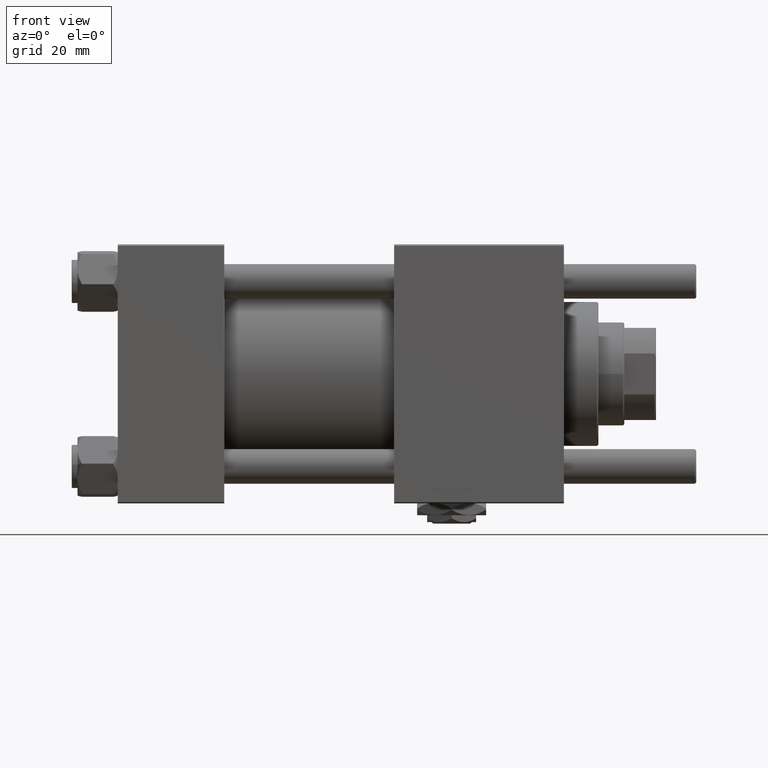
[diagram: clean part render]
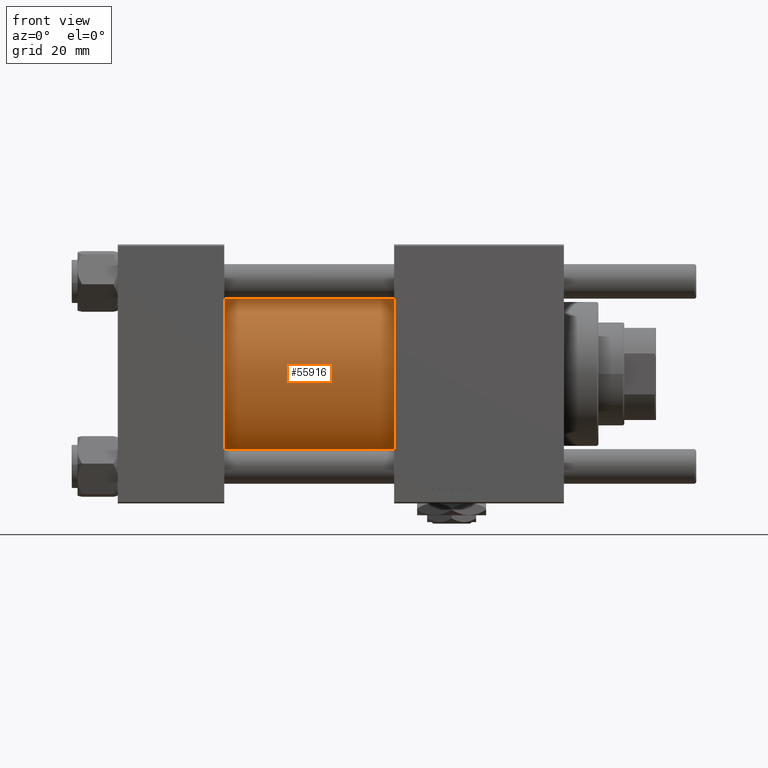
[diagram: same view with one face highlighted and labeled with its STEP entity id]
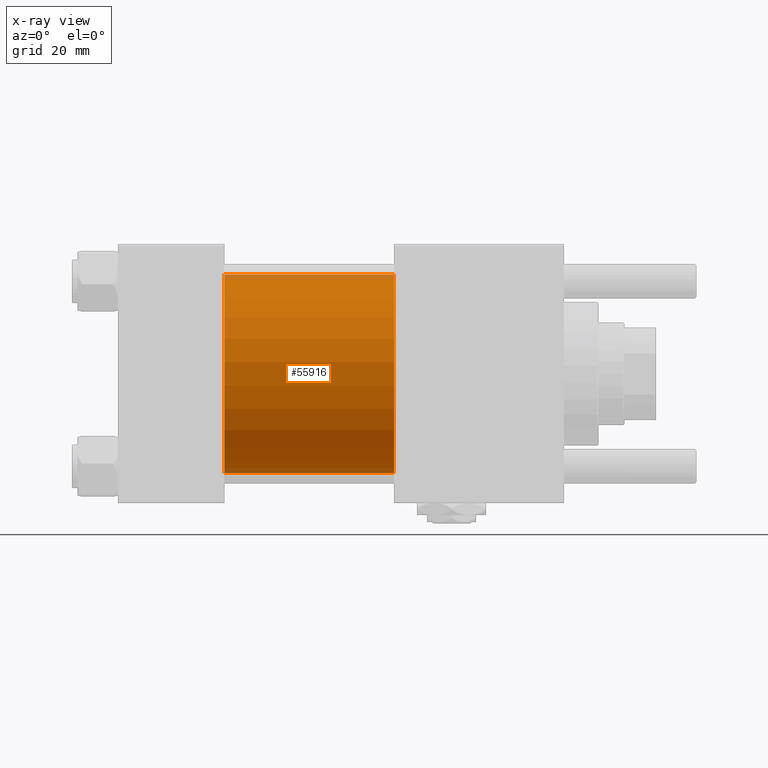
[diagram: x-ray of the same camera — body ghosted, the highlighted face saturated]
A machine part, front view. The second image highlights one B-rep face of the part: STEP entity #55916.
The next image is the same camera in x-ray: the body ghosted, the highlighted face saturated — about 5% of this face is hidden behind the body in this view.
In plain terms, the highlighted cylindrical surface (partial cylindrical patch) has radius 34.5 mm, axis along (-1, -0, -0).
Its self-contained STEP definition (entity closure, byte-faithful):
#2995 = EDGE_CURVE ( 'NONE', #51520, #41296, #13157, .T. ) ;
#4060 = CARTESIAN_POINT ( 'NONE',  ( 96.00000000000000000, 1.622946243093158675E-15, -34.50000000000000000 ) ) ;
#5785 = CARTESIAN_POINT ( 'NONE',  ( 96.00000000000000000, 1.622946243093158675E-15, -34.50000000000000000 ) ) ;
#7055 = EDGE_CURVE ( 'NONE', #51520, #57455, #25712, .T. ) ;
#10328 = AXIS2_PLACEMENT_3D ( 'NONE', #55831, #28384, #15656 ) ;
#10812 = ORIENTED_EDGE ( 'NONE', *, *, #18675, .T. ) ;
#11215 = CYLINDRICAL_SURFACE ( 'NONE', #10328, 34.50000000000000000 ) ;
#11671 = CARTESIAN_POINT ( 'NONE',  ( 37.00000000000000000, -2.602085213965210642E-15, 0.000000000000000000 ) ) ;
#13157 = LINE ( 'NONE', #17030, #23677 ) ;
#14107 = DIRECTION ( 'NONE',  ( 0.000000000000000000, 0.000000000000000000, -1.000000000000000000 ) ) ;
#15656 = DIRECTION ( 'NONE',  ( 0.000000000000000000, 0.000000000000000000, 1.000000000000000000 ) ) ;
#16731 = DIRECTION ( 'NONE',  ( -1.000000000000000000, -0.000000000000000000, -0.000000000000000000 ) ) ;
#17030 = CARTESIAN_POINT ( 'NONE',  ( 96.00000000000000000, -2.602085213965210642E-15, 34.50000000000000000 ) ) ;
#17091 = CARTESIAN_POINT ( 'NONE',  ( 37.00000000000000000, 1.622946243093158675E-15, -34.50000000000000000 ) ) ;
#17882 = EDGE_CURVE ( 'NONE', #57455, #25404, #46562, .T. ) ;
#18675 = EDGE_CURVE ( 'NONE', #41296, #25404, #20232, .T. ) ;
#19311 = VECTOR ( 'NONE', #37407, 1000.000000000000000 ) ;
#20232 = CIRCLE ( 'NONE', #57973, 34.50000000000000000 ) ;
#23677 = VECTOR ( 'NONE', #16731, 1000.000000000000000 ) ;
#25404 = VERTEX_POINT ( 'NONE', #17091 ) ;
#25712 = CIRCLE ( 'NONE', #48365, 34.50000000000000000 ) ;
#27989 = CARTESIAN_POINT ( 'NONE',  ( 96.00000000000000000, -2.602085213965210642E-15, 0.000000000000000000 ) ) ;
#28384 = DIRECTION ( 'NONE',  ( -1.000000000000000000, -0.000000000000000000, -0.000000000000000000 ) ) ;
#32204 = DIRECTION ( 'NONE',  ( 1.000000000000000000, -0.000000000000000000, 0.000000000000000000 ) ) ;
#35356 = ORIENTED_EDGE ( 'NONE', *, *, #7055, .F. ) ;
#36141 = ORIENTED_EDGE ( 'NONE', *, *, #2995, .T. ) ;
#37407 = DIRECTION ( 'NONE',  ( -1.000000000000000000, -0.000000000000000000, -0.000000000000000000 ) ) ;
#41296 = VERTEX_POINT ( 'NONE', #44686 ) ;
#44686 = CARTESIAN_POINT ( 'NONE',  ( 37.00000000000000000, -2.602085213965210642E-15, 34.50000000000000000 ) ) ;
#46357 = DIRECTION ( 'NONE',  ( 0.000000000000000000, 0.000000000000000000, 1.000000000000000000 ) ) ;
#46562 = LINE ( 'NONE', #5785, #19311 ) ;
#48365 = AXIS2_PLACEMENT_3D ( 'NONE', #27989, #49861, #14107 ) ;
#49289 = CARTESIAN_POINT ( 'NONE',  ( 96.00000000000000000, -2.602085213965210642E-15, 34.50000000000000000 ) ) ;
#49861 = DIRECTION ( 'NONE',  ( 1.000000000000000000, 0.000000000000000000, 0.000000000000000000 ) ) ;
#50010 = EDGE_LOOP ( 'NONE', ( #53270, #35356, #36141, #10812 ) ) ;
#51520 = VERTEX_POINT ( 'NONE', #49289 ) ;
#53270 = ORIENTED_EDGE ( 'NONE', *, *, #17882, .F. ) ;
#55831 = CARTESIAN_POINT ( 'NONE',  ( 96.00000000000000000, -2.602085213965210642E-15, 0.000000000000000000 ) ) ;
#55916 = ADVANCED_FACE ( 'NONE', ( #56122 ), #11215, .T. ) ;
#56122 = FACE_OUTER_BOUND ( 'NONE', #50010, .T. ) ;
#57455 = VERTEX_POINT ( 'NONE', #4060 ) ;
#57973 = AXIS2_PLACEMENT_3D ( 'NONE', #11671, #32204, #46357 ) ;